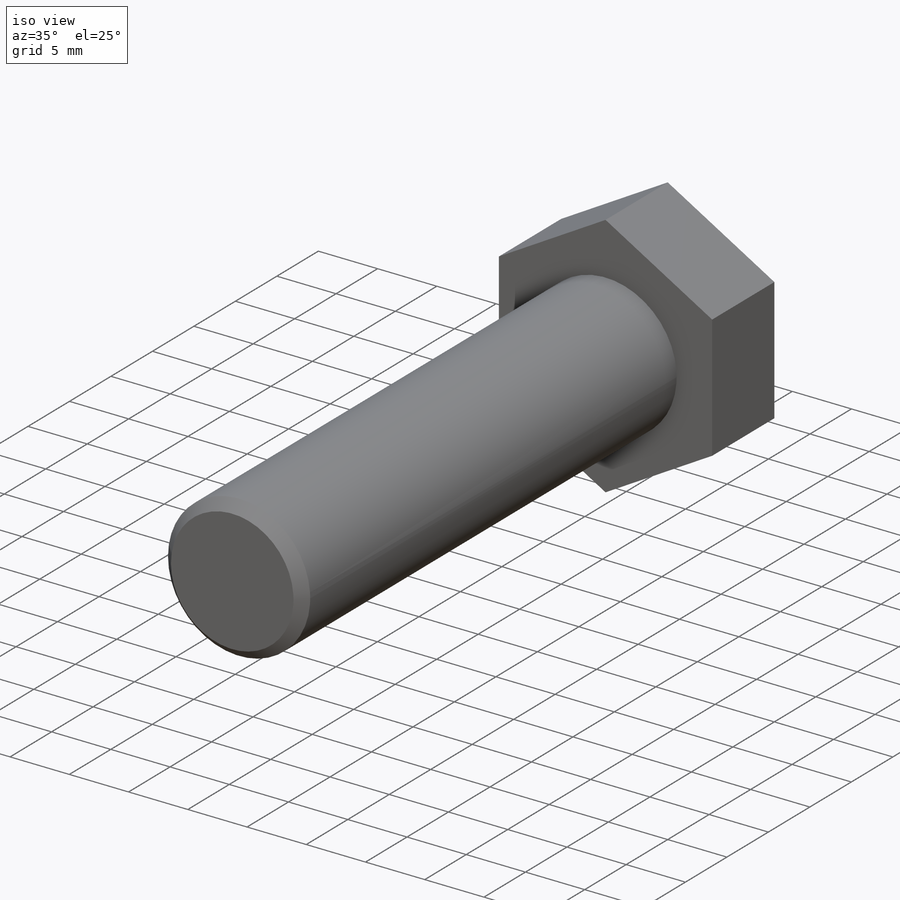
[diagram: iso view]
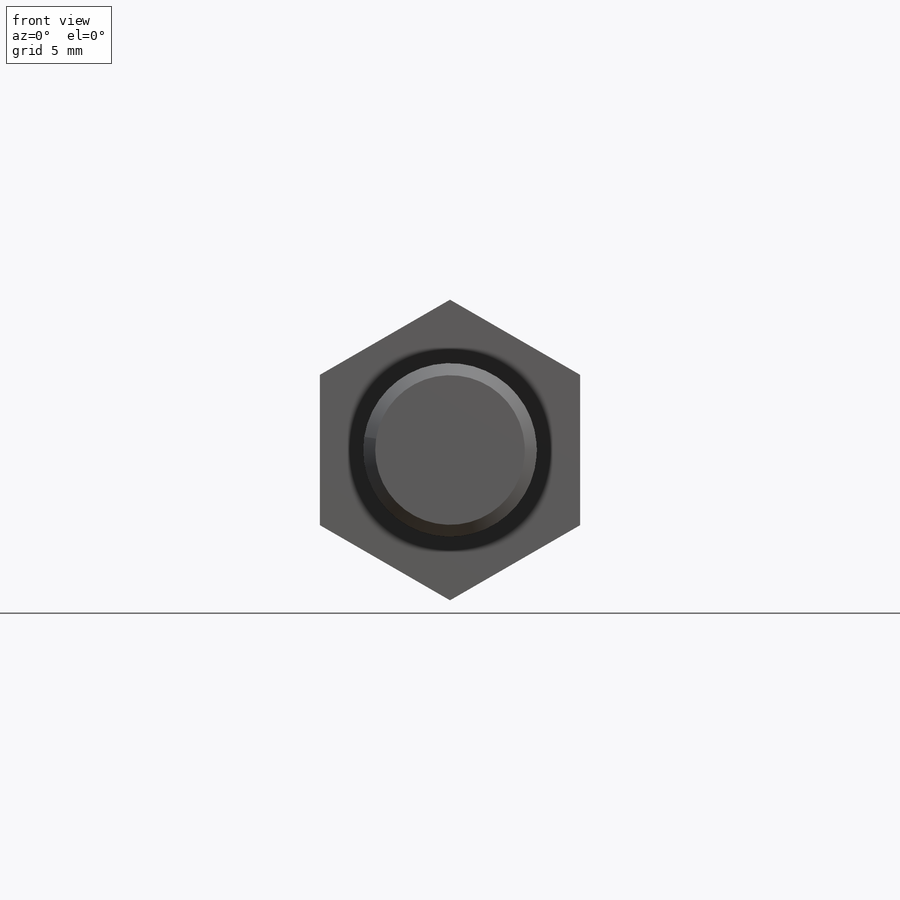
[diagram: front view]
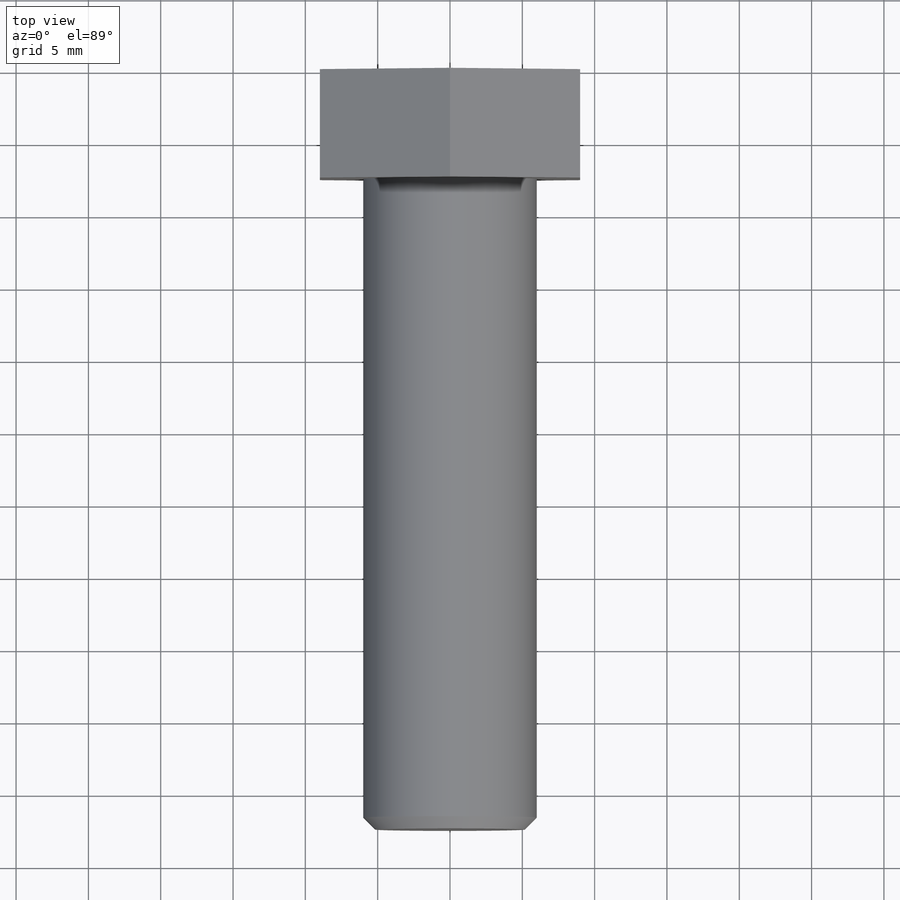
[diagram: top view]
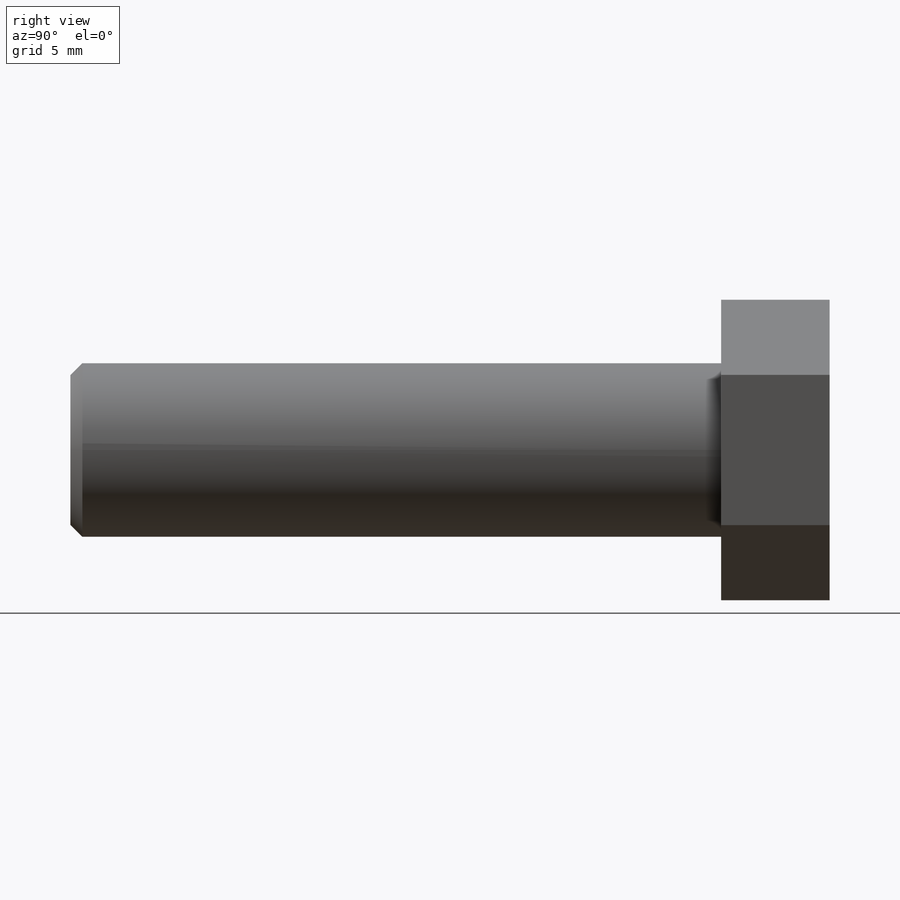
[diagram: right view]
SOLIDWORKS PART (.sldprt)
format: sldprt  version: not decoded by parser v0  size: 234,496 bytes
history: native  units: mm
features: plane x3, sketch x2, extrude x2, material x1, thread x1, chamfer x1 (+9 scaffold rows collapsed)
feature tree (19):
  scaffold x9  (default folders/planes/origin — collapsed)
  material  "Сталь"
  plane  "Спереди"
  plane  "Сверху"
  plane  "Справа"
  sketch  "Эскиз1"  dims[c1.D1=13.0mm c1.D2=5.0mm c2.D1=18.0mm]
  extrude  "Бобышка-Вытянуть1"  Depth=7.5mm
  sketch  "Эскиз2"  dims[D1=12.0mm]
  extrude  "Бобышка-Вытянуть2"  [1 undecoded]
  thread  "Условное изображение резьбы1"  Diameter=35mm  [1 undecoded]
  chamfer  "Фаска1"  Distance=0.828mm Angle=45deg
decode coverage: 5 of 6 modeling features carry decoded parameters
note: 2 parameter values undecoded
note: suppression state not decoded; provenance and decode notes live in map.json
